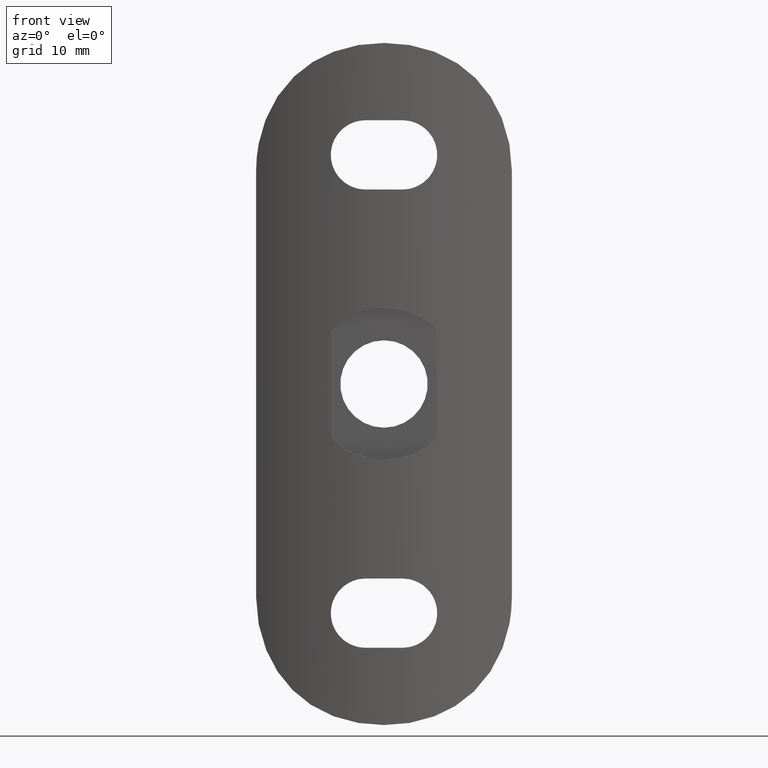
[diagram: clean part render]
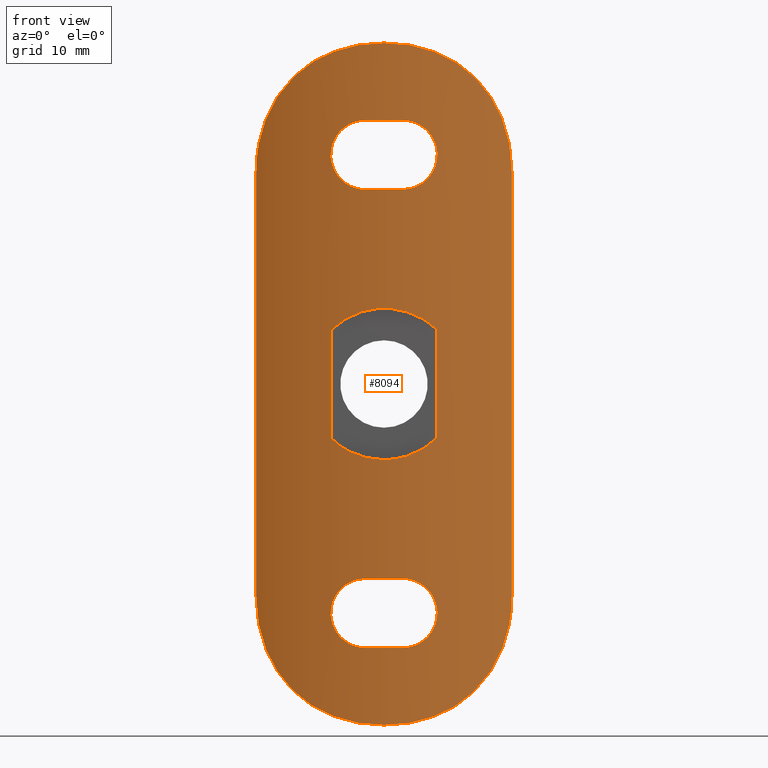
[diagram: same view with one face highlighted and labeled with its STEP entity id]
A machine part, front view. The second image highlights one B-rep face of the part: STEP entity #8094.
In plain terms, the highlighted cylindrical surface (partial cylindrical patch) has radius 24.9 mm, axis along (-0, -0, -1).
Its self-contained STEP definition (entity closure, byte-faithful):
#5 = CARTESIAN_POINT ( 'NONE',  ( -4.280658070604854300, 0.3676373866978217000, -5.683006983233148000 ) ) ;
#125 = CARTESIAN_POINT ( 'NONE',  ( -3.376757436341112100, 0.2293789948843361600, -18.67838509765151000 ) ) ;
#146 = CARTESIAN_POINT ( 'NONE',  ( 4.964876634922571700, 0.5000000000000004400, -5.075431016179797100 ) ) ;
#169 = CARTESIAN_POINT ( 'NONE',  ( 4.964876634922571700, 0.5000000000000004400, 5.075431016179797100 ) ) ;
#196 = CARTESIAN_POINT ( 'NONE',  ( 4.833440540320079700, 0.4734815985522365900, 22.54901821913098900 ) ) ;
#291 = CARTESIAN_POINT ( 'NONE',  ( -4.669968961185991100, 0.4417023648261141900, -22.94282409927689400 ) ) ;
#384 = CARTESIAN_POINT ( 'NONE',  ( 8.908510052025802000, 1.646330388748681500, -28.37937364185426500 ) ) ;
#437 = CARTESIAN_POINT ( 'NONE',  ( 1.354727536736092600E-015, 0.0000000000000000000, -32.00000000000000000 ) ) ;
#460 = VERTEX_POINT ( 'NONE', #4483 ) ;
#488 = CARTESIAN_POINT ( 'NONE',  ( 9.651496139240766300, 1.945102445586713600, -27.47737785628718400 ) ) ;
#508 = CARTESIAN_POINT ( 'NONE',  ( 2.594514404743046800, 0.1346554937287495500, 24.64553902907457700 ) ) ;
#641 = DIRECTION ( 'NONE',  ( -0.0000000000000000000, 0.0000000000000000000, 1.000000000000000000 ) ) ;
#699 = CARTESIAN_POINT ( 'NONE',  ( 12.00000000000000000, 3.082346597307949100, 20.00000000000000000 ) ) ;
#737 = ORIENTED_EDGE ( 'NONE', *, *, #2670, .T. ) ;
#753 = B_SPLINE_CURVE_WITH_KNOTS ( 'NONE', 3,
 ( #4286, #12850, #5817, #5661, #14049, #5714, #3637, #14652, #8704, #7621, #1844, #6722, #11577, #5456, #1209, #1373, #15520, #7241, #2415, #10958, #8605, #12068, #10906, #6147 ),
 .UNSPECIFIED., .F., .F.,
 ( 4, 2, 2, 2, 2, 2, 2, 2, 2, 2, 2, 4 ),
 ( 0.0000000000000000000, 0.002405426272235872300, 0.003608139408353802400, 0.004810852544471733300, 0.007216278816707594400, 0.008418991952825522300, 0.009621705088943449300, 0.01202713136117932100, 0.01443255763341518900, 0.01563527076953312400, 0.01683798390565105800, 0.01924341017788693000 ),
 .UNSPECIFIED. ) ;
#812 = CARTESIAN_POINT ( 'NONE',  ( 3.379298493659807600, 0.2297376527785607300, -18.67998032685584100 ) ) ;
#830 = CARTESIAN_POINT ( 'NONE',  ( -3.198330643184879900, 0.2031510813098111900, -31.65048156429587700 ) ) ;
#996 = CARTESIAN_POINT ( 'NONE',  ( -4.196808664011705000, 0.3557591106733118400, 19.35050935932302000 ) ) ;
#1002 = CARTESIAN_POINT ( 'NONE',  ( -9.887935222964619800, 2.046306664894907100, -27.14406495904744400 ) ) ;
#1006 = CARTESIAN_POINT ( 'NONE',  ( -7.465386431756504800, 1.143302312327336300, 29.68815436188814200 ) ) ;
#1025 = EDGE_LOOP ( 'NONE', ( #14755, #6089, #1216, #14668, #3434 ) ) ;
#1051 = CARTESIAN_POINT ( 'NONE',  ( -1.965087105857092500, 0.07672614713536238300, 18.25000000000000700 ) ) ;
#1159 = VERTEX_POINT ( 'NONE', #7335 ) ;
#1168 = CARTESIAN_POINT ( 'NONE',  ( 2.471878148250433100, 0.1220882104319690000, 6.659715758080817100 ) ) ;
#1200 = CARTESIAN_POINT ( 'NONE',  ( -5.000178405531976000, 0.5072097547976762700, 21.28707146590866700 ) ) ;
#1209 = CARTESIAN_POINT ( 'NONE',  ( 7.494247687663859700, 1.144484963655814800, 29.69387504587054500 ) ) ;
#1216 = ORIENTED_EDGE ( 'NONE', *, *, #8735, .T. ) ;
#1221 = CARTESIAN_POINT ( 'NONE',  ( 3.100854879138973600, 0.1929892019412275700, 6.391162737197316100 ) ) ;
#1246 = EDGE_CURVE ( 'NONE', #10184, #7170, #11977, .T. ) ;
#1288 = DIRECTION ( 'NONE',  ( 0.0000000000000000000, 0.0000000000000000000, -1.000000000000000000 ) ) ;
#1357 = CARTESIAN_POINT ( 'NONE',  ( 3.896366404324649300, 0.3062742463137166900, 19.05043842752545700 ) ) ;
#1373 = CARTESIAN_POINT ( 'NONE',  ( 6.164181800682563100, 0.7651474880378923400, 30.55211743802890100 ) ) ;
#1416 = CARTESIAN_POINT ( 'NONE',  ( -6.164181800682564800, 0.7651474880378932300, -30.55211743802890100 ) ) ;
#1498 = CARTESIAN_POINT ( 'NONE',  ( -4.333772591232490300, 0.3797466675969473100, -23.48287101470506100 ) ) ;
#1510 = CARTESIAN_POINT ( 'NONE',  ( 0.4591875355903487500, -2.204826761702943400E-015, -7.099999999999998800 ) ) ;
#1522 = EDGE_CURVE ( 'NONE', #5385, #3752, #5687, .T. ) ;
#1570 = CARTESIAN_POINT ( 'NONE',  ( 4.330242670651371000, 0.3791190960058236100, 19.51243666303044200 ) ) ;
#1594 = LINE ( 'NONE', #7544, #5188 ) ;
#1598 = CARTESIAN_POINT ( 'NONE',  ( -2.794747767780328300, 0.1541723985420278800, 31.73757162576538300 ) ) ;
#1599 = CARTESIAN_POINT ( 'NONE',  ( 12.00000000000000000, 3.082346597307949100, -20.00000000000000400 ) ) ;
#1748 = CARTESIAN_POINT ( 'NONE',  ( 9.880202087646580400, 2.042944110087796500, -27.15553979867361900 ) ) ;
#1775 = CARTESIAN_POINT ( 'NONE',  ( 4.332059542138636300, 0.3794452567388370600, 23.48501449485315400 ) ) ;
#1814 = CARTESIAN_POINT ( 'NONE',  ( 1.750000000000000700, 0.06157211094067610600, -24.74999999999999300 ) ) ;
#1844 = CARTESIAN_POINT ( 'NONE',  ( 9.659094786861162500, 1.948286492643255500, 27.46718664785969800 ) ) ;
#1869 = CARTESIAN_POINT ( 'NONE',  ( 4.832181657531248400, 0.4732340548237890500, -22.55241183402255000 ) ) ;
#1882 = VECTOR ( 'NONE', #2937, 1000.000000000000000 ) ;
#2139 = CARTESIAN_POINT ( 'NONE',  ( -8.362564540343113300, 1.444462998155984200, 28.93211677885593900 ) ) ;
#2149 = CIRCLE ( 'NONE', #12706, 24.89999999999999900 ) ;
#2208 = CARTESIAN_POINT ( 'NONE',  ( -9.659094786861166100, 1.948286492643255000, -27.46718664785970200 ) ) ;
#2215 = CARTESIAN_POINT ( 'NONE',  ( -1.912593264708343100E-023, 6.155950491353872400E-016, -7.099999999999998800 ) ) ;
#2253 = CARTESIAN_POINT ( 'NONE',  ( -2.173427572264014200, 0.09414151805681814100, 24.72938703061542800 ) ) ;
#2273 = CARTESIAN_POINT ( 'NONE',  ( -0.9285590918302121200, 0.01324505405162718300, 7.053925608798210500 ) ) ;
#2304 = CARTESIAN_POINT ( 'NONE',  ( -4.569974044707461000, 0.4226687404766058000, 19.87045876046723000 ) ) ;
#2356 = CARTESIAN_POINT ( 'NONE',  ( -2.177443562086834600, 0.09449415069726155300, 18.27114221892200500 ) ) ;
#2405 = CARTESIAN_POINT ( 'NONE',  ( -4.831856888946314000, 0.4731675139192338400, 22.55362868575011200 ) ) ;
#2415 = CARTESIAN_POINT ( 'NONE',  ( 3.974160166930932500, 0.3160679226588394300, 31.44271765376582900 ) ) ;
#2469 = CARTESIAN_POINT ( 'NONE',  ( -4.964876634922571700, 0.5000000000000004400, -5.075431016179798000 ) ) ;
#2485 = VERTEX_POINT ( 'NONE', #5839 ) ;
#2495 = CARTESIAN_POINT ( 'NONE',  ( -2.596838392578858300, 0.1348872146986936100, -24.64501117741286200 ) ) ;
#2564 = CARTESIAN_POINT ( 'NONE',  ( 4.195764808227311300, 0.3555795489418211400, 19.34930821785307500 ) ) ;
#2577 = CARTESIAN_POINT ( 'NONE',  ( -2.895531408592609600, 0.1680181235751893900, -6.486742510624893000 ) ) ;
#2644 = CARTESIAN_POINT ( 'NONE',  ( -4.567540273459067100, 0.4222143378470050700, -19.86630350374644400 ) ) ;
#2657 = CARTESIAN_POINT ( 'NONE',  ( 3.515929554202507700, 0.2486291357947134100, -6.172583524609188500 ) ) ;
#2670 = EDGE_CURVE ( 'NONE', #14160, #7533, #1594, .T. ) ;
#2704 = CARTESIAN_POINT ( 'NONE',  ( -3.897762865485695700, 0.3064966212607161400, -23.94832541266094200 ) ) ;
#2749 = CARTESIAN_POINT ( 'NONE',  ( 3.959980470126882100, 0.3137906045222421100, -31.44697538539421800 ) ) ;
#2772 = CARTESIAN_POINT ( 'NONE',  ( 4.999896307886642100, 0.5071519309142021900, 21.28559328919293500 ) ) ;
#2777 = CARTESIAN_POINT ( 'NONE',  ( 12.00000000000000000, 3.082346597307949100, 32.00000000000000000 ) ) ;
#2820 = CARTESIAN_POINT ( 'NONE',  ( 4.567742853892713000, 0.4222535756533749000, 23.13329092119648300 ) ) ;
#2847 = CARTESIAN_POINT ( 'NONE',  ( 7.465386431756502200, 1.143302312327335800, -29.68815436188812400 ) ) ;
#2907 = CARTESIAN_POINT ( 'NONE',  ( 6.156121038829931000, 0.7632757867342778700, -30.55584034722585700 ) ) ;
#2921 = CARTESIAN_POINT ( 'NONE',  ( 0.0000000000000000000, 24.89999999999999900, -24.74999999999999300 ) ) ;
#2937 = DIRECTION ( 'NONE',  ( -0.0000000000000000000, -0.0000000000000000000, -1.000000000000000000 ) ) ;
#2981 = CARTESIAN_POINT ( 'NONE',  ( 2.177902720471077000, 0.09454630024108080800, 24.72870246772033600 ) ) ;
#2999 = ORIENTED_EDGE ( 'NONE', *, *, #11983, .F. ) ;
#3004 = FACE_BOUND ( 'NONE', #15356, .T. ) ;
#3017 = CARTESIAN_POINT ( 'NONE',  ( 3.377047475293694300, 0.2294254022964722900, -24.32136223190054000 ) ) ;
#3080 = CARTESIAN_POINT ( 'NONE',  ( 4.332059542138636300, 0.3794452567388370600, -19.51498550514684300 ) ) ;
#3338 = EDGE_CURVE ( 'NONE', #3429, #3574, #6497, .T. ) ;
#3402 = CARTESIAN_POINT ( 'NONE',  ( -11.64449887647196900, 2.889965252531363500, 23.19149219421942800 ) ) ;
#3407 = CARTESIAN_POINT ( 'NONE',  ( -1.750000000000001100, 0.06157211094067610600, 24.74999999999999600 ) ) ;
#3423 = LINE ( 'NONE', #8789, #14149 ) ;
#3429 = VERTEX_POINT ( 'NONE', #5451 ) ;
#3434 = ORIENTED_EDGE ( 'NONE', *, *, #14513, .T. ) ;
#3450 = ORIENTED_EDGE ( 'NONE', *, *, #14727, .F. ) ;
#3459 = EDGE_CURVE ( 'NONE', #7533, #460, #13655, .T. ) ;
#3462 = CARTESIAN_POINT ( 'NONE',  ( -10.86337671054186600, 2.492480404372157600, 25.45273175522527600 ) ) ;
#3465 = CARTESIAN_POINT ( 'NONE',  ( -2.592930581873433400, 0.1344773235924728300, 24.64606095564008800 ) ) ;
#3537 = CARTESIAN_POINT ( 'NONE',  ( -2.264874394996064100, 0.09954205950475265900, 6.744685369997285700 ) ) ;
#3574 = VERTEX_POINT ( 'NONE', #4983 ) ;
#3589 = CARTESIAN_POINT ( 'NONE',  ( 1.816407414500746900, 0.06535917475730801400, 6.867561215927570300 ) ) ;
#3634 = CARTESIAN_POINT ( 'NONE',  ( -1.818617320225537300, 0.06552235762753380600, -6.866971293440952800 ) ) ;
#3637 = CARTESIAN_POINT ( 'NONE',  ( 11.28972141810764800, 2.705919538751912600, 24.33666306912914500 ) ) ;
#3638 = B_SPLINE_CURVE_WITH_KNOTS ( 'NONE', 3,
 ( #6269, #12350, #6330, #9820, #13419, #9725, #125, #14516, #14730, #14623, #14673, #2644, #7370, #7491, #8676, #9879, #9934, #3863, #11080, #13320, #12288, #291, #8722, #1498, #12149, #2704, #13526, #6380, #13369, #8524, #2495, #10931, #8574, #4924 ),
 .UNSPECIFIED., .F., .F.,
 ( 4, 2, 2, 2, 2, 2, 2, 2, 2, 2, 2, 2, 2, 2, 2, 2, 4 ),
 ( 0.01016492423979671100, 0.01080261328398359600, 0.01144030232817048200, 0.01207799137235736700, 0.01271568041654425100, 0.01335336946073113600, 0.01399105850491802100, 0.01462874754910490500, 0.01526643659329179200, 0.01590412563747867600, 0.01654181468166555900, 0.01717950372585244600, 0.01781719277003933300, 0.01845488181422621700, 0.01909257085841310100, 0.01973025990259998800, 0.02036794894678687100 ),
 .UNSPECIFIED. ) ;
#3644 = VERTEX_POINT ( 'NONE', #1814 ) ;
#3752 = VERTEX_POINT ( 'NONE', #8545 ) ;
#3753 = B_SPLINE_CURVE_WITH_KNOTS ( 'NONE', 3,
 ( #6436, #12455, #7651, #5518, #6792, #11547, #3017, #15227, #13900, #4449, #13950, #14057, #14005, #1869, #9244, #11493, #4343, #4236, #6749, #10302, #12654, #6837, #5466, #3080, #13848, #15082, #15133, #812, #6894, #12857, #6696, #9144, #8006, #8103 ),
 .UNSPECIFIED., .F., .F.,
 ( 4, 2, 2, 2, 2, 2, 2, 2, 2, 2, 2, 2, 2, 2, 2, 2, 4 ),
 ( 6.527761501258138900E-019, 0.0006377519170020730000, 0.001275503834004145400, 0.001913255751006217700, 0.002551007668008290300, 0.003188759585010363700, 0.003826511502012437200, 0.004464263419014510200, 0.005102015336016584000, 0.005739767253018657900, 0.006377519170020730900, 0.007015271087022804800, 0.007653023004024878600, 0.008290774921026949900, 0.008928526838029023800, 0.009566278755031097600, 0.01020403067203317200 ),
 .UNSPECIFIED. ) ;
#3843 = CARTESIAN_POINT ( 'NONE',  ( -3.506564222652095400, 0.2472996807291502100, -6.177880390645220200 ) ) ;
#3863 = CARTESIAN_POINT ( 'NONE',  ( -5.000178405531976000, 0.5072097547976762700, -21.71292853409132900 ) ) ;
#4006 = VERTEX_POINT ( 'NONE', #8634 ) ;
#4008 = CARTESIAN_POINT ( 'NONE',  ( -3.185422266228745700, 0.2014935117955072600, 31.65346151089247300 ) ) ;
#4030 = CARTESIAN_POINT ( 'NONE',  ( 4.197292259330842200, 0.3558296952568652000, 23.64919601314342400 ) ) ;
#4060 = CARTESIAN_POINT ( 'NONE',  ( -7.144447545478620000, 1.044514472182765500, 29.92030368926517500 ) ) ;
#4110 = CARTESIAN_POINT ( 'NONE',  ( 9.166149050193594100, 1.747021551233983500, -28.08848537800125600 ) ) ;
#4188 = CARTESIAN_POINT ( 'NONE',  ( 3.379298493659807600, 0.2297376527785607300, 24.32001967314414900 ) ) ;
#4236 = CARTESIAN_POINT ( 'NONE',  ( 5.000102926341558200, 0.5071942832089982900, -21.28874844890423300 ) ) ;
#4248 = CARTESIAN_POINT ( 'NONE',  ( 3.189447144969141500, 0.2043215681768341700, 24.42158148833293700 ) ) ;
#4273 = AXIS2_PLACEMENT_3D ( 'NONE', #13626, #641, #7741 ) ;
#4286 = CARTESIAN_POINT ( 'NONE',  ( 12.00000000000000000, 3.082346597307949100, 20.00000000000000000 ) ) ;
#4343 = CARTESIAN_POINT ( 'NONE',  ( 4.999896307886642100, 0.5071519309142021900, -21.71440671080705800 ) ) ;
#4361 = EDGE_CURVE ( 'NONE', #11782, #5385, #11739, .T. ) ;
#4449 = CARTESIAN_POINT ( 'NONE',  ( 4.195764808227311300, 0.3555795489418211400, -23.65069178214692200 ) ) ;
#4483 = CARTESIAN_POINT ( 'NONE',  ( 1.354727536736092600E-015, 0.0000000000000000000, -32.00000000000000000 ) ) ;
#4543 = CARTESIAN_POINT ( 'NONE',  ( -9.651496139240766300, 1.945102445586713900, 27.47737785628719100 ) ) ;
#4683 = CARTESIAN_POINT ( 'NONE',  ( -1.750000000000000000, 0.06157211094067610600, 18.25000000000000000 ) ) ;
#4700 = CARTESIAN_POINT ( 'NONE',  ( -0.4623322430174350300, 6.315633565654596400E-005, 7.099778508038800100 ) ) ;
#4728 = CARTESIAN_POINT ( 'NONE',  ( -4.193951421218593500, 0.3552689643878874100, 23.65274985050639200 ) ) ;
#4796 = EDGE_CURVE ( 'NONE', #2485, #3429, #3423, .T. ) ;
#4807 = CARTESIAN_POINT ( 'NONE',  ( -4.636331865774007400, 0.4331481865626338700, 5.396819336240054300 ) ) ;
#4824 = CARTESIAN_POINT ( 'NONE',  ( 0.0000000000000000000, 24.89999999999999900, 24.74999999999999600 ) ) ;
#4894 = EDGE_CURVE ( 'NONE', #7802, #3644, #11344, .T. ) ;
#4924 = CARTESIAN_POINT ( 'NONE',  ( -1.750000000000000700, 0.06157211094067610600, -24.74999999999999300 ) ) ;
#4983 = CARTESIAN_POINT ( 'NONE',  ( 4.964876634922571700, 0.5000000000000004400, 5.075431016179797100 ) ) ;
#4986 = CARTESIAN_POINT ( 'NONE',  ( -8.908510052025803800, 1.646330388748682600, 28.37937364185426100 ) ) ;
#4996 = CARTESIAN_POINT ( 'NONE',  ( 1.825648068936847100, 0.06292902135083973400, -6.876581450474884800 ) ) ;
#5011 = CARTESIAN_POINT ( 'NONE',  ( -1.592997682174077700, 0.04997569684468480100, -6.922826244222283000 ) ) ;
#5046 = CARTESIAN_POINT ( 'NONE',  ( 1.965143980138813800, 0.07673015423248856500, 18.24999999999999600 ) ) ;
#5101 = CARTESIAN_POINT ( 'NONE',  ( 4.894892916164645900, 0.4858264890792329300, 20.65247071163287600 ) ) ;
#5128 = CARTESIAN_POINT ( 'NONE',  ( 4.280216917462838400, 0.3675560682073232800, 5.683362678621718600 ) ) ;
#5170 = CARTESIAN_POINT ( 'NONE',  ( -1.912593264708343100E-023, 6.155950491353872400E-016, -7.099999999999998800 ) ) ;
#5188 = VECTOR ( 'NONE', #14782, 1000.000000000000000 ) ;
#5207 = B_SPLINE_CURVE_WITH_KNOTS ( 'NONE', 3,
 ( #437, #7738, #14773, #7641, #10127, #2749, #14877, #6424, #2907, #6537, #2847, #11326, #12545, #384, #4110, #488, #1748, #5354, #9979, #8880, #13726, #5247, #8826, #1599 ),
 .UNSPECIFIED., .F., .F.,
 ( 4, 2, 2, 2, 2, 2, 2, 2, 2, 2, 2, 4 ),
 ( 1.186568927549904400E-017, 0.002406420888281001100, 0.003609631332421493800, 0.004812841776561986600, 0.007219262664842970300, 0.008422473108983460900, 0.009625683553123954100, 0.01082889399726444400, 0.01203210444140493400, 0.01443852532968592300, 0.01684494621796691100, 0.01925136710624790100 ),
 .UNSPECIFIED. ) ;
#5247 = CARTESIAN_POINT ( 'NONE',  ( 11.92848259060795400, 3.042569072407050400, -21.61410712426871300 ) ) ;
#5290 = CARTESIAN_POINT ( 'NONE',  ( -11.62834804759316000, 2.881689642610588900, -23.18144421163977900 ) ) ;
#5295 = CARTESIAN_POINT ( 'NONE',  ( -0.8125589719993513400, 3.887881227897237100E-016, 32.00000000000000000 ) ) ;
#5354 = CARTESIAN_POINT ( 'NONE',  ( 10.51395294504080100, 2.323897979086565300, -26.15610659191669600 ) ) ;
#5385 = VERTEX_POINT ( 'NONE', #9898 ) ;
#5434 = CARTESIAN_POINT ( 'NONE',  ( -4.352835420540757600, 0.3805286105153351500, -31.32115928304209600 ) ) ;
#5451 = CARTESIAN_POINT ( 'NONE',  ( -4.964876634922571700, 0.5000000000000004400, 5.075431016179797100 ) ) ;
#5456 = CARTESIAN_POINT ( 'NONE',  ( 8.096501375618355900, 1.345930086255307000, 29.20234642595245200 ) ) ;
#5466 = CARTESIAN_POINT ( 'NONE',  ( 4.567742853892713000, 0.4222535756533749000, -19.86670907880352000 ) ) ;
#5487 = EDGE_LOOP ( 'NONE', ( #14888, #10495, #2999, #8823 ) ) ;
#5518 = CARTESIAN_POINT ( 'NONE',  ( 2.591758761209229000, 0.1343724820084808400, -24.64623100149121600 ) ) ;
#5563 = CARTESIAN_POINT ( 'NONE',  ( -1.750000000000001100, 0.06157211094067610600, 24.74999999999999600 ) ) ;
#5661 = CARTESIAN_POINT ( 'NONE',  ( 11.71658496996893100, 2.928699025537531100, 22.79178284133484000 ) ) ;
#5687 = B_SPLINE_CURVE_WITH_KNOTS ( 'NONE', 3,
 ( #14585, #5046, #13541, #13434, #11202, #7662, #8796, #12209, #1357, #2564, #1570, #6288, #9996, #11092, #5101, #11004, #2772, #13386, #6235, #7448, #196, #7863, #2820, #1775, #4030, #7708, #10201, #4188, #4248, #10149, #508, #2981, #11296, #10054 ),
 .UNSPECIFIED., .F., .F.,
 ( 4, 2, 2, 2, 2, 2, 2, 2, 2, 2, 2, 2, 2, 2, 2, 2, 4 ),
 ( 6.527761501258138900E-019, 0.0006377519170020730000, 0.001275503834004145400, 0.001913255751006217700, 0.002551007668008290300, 0.003188759585010363700, 0.003826511502012437200, 0.004464263419014510200, 0.005102015336016584000, 0.005739767253018657900, 0.006377519170020730900, 0.007015271087022804800, 0.007653023004024878600, 0.008290774921026949900, 0.008928526838029023800, 0.009566278755031097600, 0.01020403067203317200 ),
 .UNSPECIFIED. ) ;
#5714 = CARTESIAN_POINT ( 'NONE',  ( 11.41507547166433100, 2.770370059883676900, 23.95386468381838400 ) ) ;
#5727 = ORIENTED_EDGE ( 'NONE', *, *, #7743, .T. ) ;
#5817 = CARTESIAN_POINT ( 'NONE',  ( 11.92848342012842100, 3.042575568667967600, 21.61270732962849600 ) ) ;
#5839 = CARTESIAN_POINT ( 'NONE',  ( -4.964876634922571700, 0.5000000000000004400, -5.075431016179798000 ) ) ;
#5852 = CARTESIAN_POINT ( 'NONE',  ( -4.333772591232490300, 0.3797466675969473100, 19.51712898529493500 ) ) ;
#5874 = CARTESIAN_POINT ( 'NONE',  ( -12.00000000000000000, 3.082346597307949100, -20.00000000000000400 ) ) ;
#5904 = CARTESIAN_POINT ( 'NONE',  ( -12.00000000000000000, 3.082346597307949100, 20.00000000000000000 ) ) ;
#5908 = CARTESIAN_POINT ( 'NONE',  ( -2.596838392578858300, 0.1348872146986936100, 18.35498882258713500 ) ) ;
#5937 = CARTESIAN_POINT ( 'NONE',  ( 1.590617300758583100, 0.04982189489905082500, 6.923377972446072400 ) ) ;
#5991 = ORIENTED_EDGE ( 'NONE', *, *, #1522, .F. ) ;
#6010 = CARTESIAN_POINT ( 'NONE',  ( -0.8129078222397836400, 3.777766944754178500E-016, -32.00000000000000700 ) ) ;
#6022 = CARTESIAN_POINT ( 'NONE',  ( -4.999819341627043600, 0.5071361545086710000, 21.71834027389242300 ) ) ;
#6028 = CARTESIAN_POINT ( 'NONE',  ( -7.494247687663858800, 1.144484963655815600, -29.69387504587054500 ) ) ;
#6046 = CARTESIAN_POINT ( 'NONE',  ( -2.901699150288131500, 0.1687296209421771900, 6.484038188702943900 ) ) ;
#6064 = FACE_BOUND ( 'NONE', #5487, .T. ) ;
#6089 = ORIENTED_EDGE ( 'NONE', *, *, #3338, .T. ) ;
#6090 = CARTESIAN_POINT ( 'NONE',  ( -3.102125699781573600, 0.1931499008449999400, -6.390541049978247100 ) ) ;
#6138 = CARTESIAN_POINT ( 'NONE',  ( -8.913816326006879000, 1.648370712723072900, -28.37356755031020600 ) ) ;
#6147 = CARTESIAN_POINT ( 'NONE',  ( -9.648348977379416000E-015, 0.0000000000000000000, 32.00000000000000000 ) ) ;
#6158 = CARTESIAN_POINT ( 'NONE',  ( -3.712954843146298000, 0.2776349266171045900, 6.056033097486660700 ) ) ;
#6235 = CARTESIAN_POINT ( 'NONE',  ( 4.978818007562640700, 0.5028036596264162700, 21.92748556011540000 ) ) ;
#6269 = CARTESIAN_POINT ( 'NONE',  ( -1.750000000000000700, 0.06157211094067610600, -18.25000000000000400 ) ) ;
#6288 = CARTESIAN_POINT ( 'NONE',  ( 4.568030018327656100, 0.4223019128380129400, 19.86697609517805300 ) ) ;
#6330 = CARTESIAN_POINT ( 'NONE',  ( -2.173427572264014200, 0.09414151805681814100, -18.27061296938456900 ) ) ;
#6380 = CARTESIAN_POINT ( 'NONE',  ( -3.379507398979872500, 0.2297529128999119800, -24.32007242477439500 ) ) ;
#6424 = CARTESIAN_POINT ( 'NONE',  ( 5.455945028680434700, 0.5933539838150057000, -30.90527435075046400 ) ) ;
#6436 = CARTESIAN_POINT ( 'NONE',  ( 1.750000000000000700, 0.06157211094067610600, -24.74999999999999300 ) ) ;
#6477 = B_SPLINE_CURVE_WITH_KNOTS ( 'NONE', 3,
 ( #12055, #13239, #14635, #13288, #2657, #12306, #12361, #14688, #4996, #8642, #1510, #7446 ),
 .UNSPECIFIED., .F., .F.,
 ( 4, 2, 2, 2, 2, 4 ),
 ( 1.084202172485504400E-019, 0.001374906896801239600, 0.002062360345201859300, 0.002749813793602478700, 0.004124720690403720400, 0.005499627587204962600 ),
 .UNSPECIFIED. ) ;
#6497 = B_SPLINE_CURVE_WITH_KNOTS ( 'NONE', 3,
 ( #9553, #4807, #14361, #6158, #8316, #9500, #6046, #3537, #8465, #2273, #4700, #14412, #13108, #5937, #3589, #7205, #1168, #9602, #1221, #7415, #14661, #5128, #12278, #169 ),
 .UNSPECIFIED., .F., .F.,
 ( 4, 2, 2, 2, 2, 2, 2, 2, 2, 2, 2, 4 ),
 ( 1.084202172485504400E-019, 0.001374055046407001800, 0.002061082569610501200, 0.002748110092814001100, 0.004122165139220996400, 0.005496220185627991700, 0.006870275232034987100, 0.007557302755238485600, 0.008244330278441982400, 0.008931357801645478300, 0.009618385324848976000, 0.01099244037125597000 ),
 .UNSPECIFIED. ) ;
#6537 = CARTESIAN_POINT ( 'NONE',  ( 7.144447545478620900, 1.044514472182761700, -29.92030368926517200 ) ) ;
#6680 = CARTESIAN_POINT ( 'NONE',  ( -1.613102312184491600, 0.03970442660034871600, 31.93708710865749000 ) ) ;
#6696 = CARTESIAN_POINT ( 'NONE',  ( 2.594514404743046800, 0.1346554937287495500, -18.35446097092542000 ) ) ;
#6717 = CARTESIAN_POINT ( 'NONE',  ( -3.974160166930936100, 0.3160679226588403200, -31.44271765376582200 ) ) ;
#6722 = CARTESIAN_POINT ( 'NONE',  ( 9.171811217397618100, 1.749251761168286100, 28.08196296880781200 ) ) ;
#6749 = CARTESIAN_POINT ( 'NONE',  ( 4.978818007562640700, 0.5028036596264162700, -21.07251443988460000 ) ) ;
#6792 = CARTESIAN_POINT ( 'NONE',  ( 2.797891268713692500, 0.1569006532702281500, -24.58377171361764700 ) ) ;
#6837 = CARTESIAN_POINT ( 'NONE',  ( 4.669786817375190900, 0.4416672736397513300, -20.05677800361822700 ) ) ;
#6877 = CARTESIAN_POINT ( 'NONE',  ( -11.28972141810764600, 2.705919538751912600, -24.33666306912914500 ) ) ;
#6894 = CARTESIAN_POINT ( 'NONE',  ( 3.189447144969141500, 0.2043215681768341700, -18.57841851166708100 ) ) ;
#7064 = CARTESIAN_POINT ( 'NONE',  ( -1.615684953159060900, 0.03974048908352446200, -31.93706210126419300 ) ) ;
#7080 = CARTESIAN_POINT ( 'NONE',  ( -3.897762865485695700, 0.3064966212607161400, 19.05167458733905400 ) ) ;
#7127 = CARTESIAN_POINT ( 'NONE',  ( -2.797410199282315700, 0.1568560611489179200, 24.58384105369424300 ) ) ;
#7170 = VERTEX_POINT ( 'NONE', #8233 ) ;
#7205 = CARTESIAN_POINT ( 'NONE',  ( 2.256384447253276400, 0.1014627439347175200, 6.735834185619431500 ) ) ;
#7231 = CARTESIAN_POINT ( 'NONE',  ( -4.331279476224484200, 0.3793060218351521100, 23.48607494824772200 ) ) ;
#7241 = CARTESIAN_POINT ( 'NONE',  ( 4.352835420540753100, 0.3805286105153353700, 31.32115928304211000 ) ) ;
#7335 = CARTESIAN_POINT ( 'NONE',  ( -9.648348977379416000E-015, 0.0000000000000000000, 32.00000000000000000 ) ) ;
#7370 = CARTESIAN_POINT ( 'NONE',  ( -4.667758336609303200, 0.4412792973687408300, -20.05270542717514500 ) ) ;
#7415 = CARTESIAN_POINT ( 'NONE',  ( 3.505576954194477700, 0.2471580994179633800, 6.178445786202224200 ) ) ;
#7446 = CARTESIAN_POINT ( 'NONE',  ( -1.912593264708343100E-023, 6.155950491353872400E-016, -7.099999999999998800 ) ) ;
#7448 = CARTESIAN_POINT ( 'NONE',  ( 4.895234471306550500, 0.4858955213569160500, 22.34587809439242200 ) ) ;
#7491 = CARTESIAN_POINT ( 'NONE',  ( -4.831856888946314000, 0.4731675139192338400, -20.44637131424988800 ) ) ;
#7509 = EDGE_CURVE ( 'NONE', #3644, #10956, #3753, .T. ) ;
#7533 = VERTEX_POINT ( 'NONE', #5874 ) ;
#7544 = CARTESIAN_POINT ( 'NONE',  ( -12.00000000000000000, 3.082346597307949100, 32.00000000000000000 ) ) ;
#7621 = CARTESIAN_POINT ( 'NONE',  ( 9.887935222964619800, 2.046306664894908000, 27.14406495904743700 ) ) ;
#7635 = CARTESIAN_POINT ( 'NONE',  ( -11.71658496996893100, 2.928699025537531100, -22.79178284133483200 ) ) ;
#7641 = CARTESIAN_POINT ( 'NONE',  ( 2.794747767780320300, 0.1541723985420303000, -31.73757162576540500 ) ) ;
#7651 = CARTESIAN_POINT ( 'NONE',  ( 2.176447467430499200, 0.09442408937621665800, -24.72884962244126700 ) ) ;
#7662 = CARTESIAN_POINT ( 'NONE',  ( 3.190801028106020600, 0.2044953557794018700, 18.57907266605905500 ) ) ;
#7708 = CARTESIAN_POINT ( 'NONE',  ( 3.894397572931082200, 0.3059514149780170300, 23.95149790020295600 ) ) ;
#7738 = CARTESIAN_POINT ( 'NONE',  ( 0.8125589719993421300, -2.039231820514727300E-015, -31.99999999999999300 ) ) ;
#7741 = DIRECTION ( 'NONE',  ( 1.000000000000000000, 0.0000000000000000000, 0.0000000000000000000 ) ) ;
#7743 = EDGE_CURVE ( 'NONE', #1159, #14160, #10994, .T. ) ;
#7802 = VERTEX_POINT ( 'NONE', #10782 ) ;
#7863 = CARTESIAN_POINT ( 'NONE',  ( 4.669786817375190900, 0.4416672736397513300, 22.94322199638177700 ) ) ;
#7874 = CARTESIAN_POINT ( 'NONE',  ( 4.964876634922571700, 0.5000000000000004400, 32.00000000000000000 ) ) ;
#8006 = CARTESIAN_POINT ( 'NONE',  ( 1.962356749581101400, 0.07653377894264680500, -18.25000000000000400 ) ) ;
#8011 = ORIENTED_EDGE ( 'NONE', *, *, #15151, .F. ) ;
#8094 = ADVANCED_FACE ( 'NONE', ( #12443, #14104, #3004, #6064 ), #12983, .T. ) ;
#8103 = CARTESIAN_POINT ( 'NONE',  ( 1.750000000000000700, 0.06157211094067610600, -18.25000000000000000 ) ) ;
#8233 = CARTESIAN_POINT ( 'NONE',  ( 12.00000000000000000, 3.082346597307949100, -20.00000000000000400 ) ) ;
#8243 = CARTESIAN_POINT ( 'NONE',  ( -3.379507398979872500, 0.2297529128999119800, 18.67992757522560200 ) ) ;
#8297 = CARTESIAN_POINT ( 'NONE',  ( -3.191839484975250900, 0.2046407889308306500, 18.57968989934172700 ) ) ;
#8316 = CARTESIAN_POINT ( 'NONE',  ( -3.516909975171009800, 0.2487702346759024000, 6.172019479054692500 ) ) ;
#8392 = CARTESIAN_POINT ( 'NONE',  ( -11.42861343239433600, 2.775428072017194700, 23.97385143687691700 ) ) ;
#8443 = CARTESIAN_POINT ( 'NONE',  ( -2.801728404242047200, 0.1573460637212715500, 18.41763409891834900 ) ) ;
#8465 = CARTESIAN_POINT ( 'NONE',  ( -1.827830933494228400, 0.06309544638728611900, 6.875981570658937300 ) ) ;
#8502 = CARTESIAN_POINT ( 'NONE',  ( -8.074259893479329300, 1.343281069480899200, 29.19397140321250100 ) ) ;
#8524 = CARTESIAN_POINT ( 'NONE',  ( -2.801728404242047200, 0.1573460637212715500, -24.58236590108164400 ) ) ;
#8545 = CARTESIAN_POINT ( 'NONE',  ( 1.750000000000001100, 0.06157211094067610600, 24.74999999999999600 ) ) ;
#8574 = CARTESIAN_POINT ( 'NONE',  ( -1.965087105857092500, 0.07672614713536238300, -24.75000000000000000 ) ) ;
#8605 = CARTESIAN_POINT ( 'NONE',  ( 2.803457390454639200, 0.1551245332614456000, 31.73589290901538000 ) ) ;
#8634 = CARTESIAN_POINT ( 'NONE',  ( -1.750000000000000700, 0.06157211094067610600, -18.25000000000000400 ) ) ;
#8642 = CARTESIAN_POINT ( 'NONE',  ( 0.9257241312039713500, 0.01313357405203879000, -7.054317695534754400 ) ) ;
#8676 = CARTESIAN_POINT ( 'NONE',  ( -4.894941741650815600, 0.4858369437823887900, -20.65326698999940500 ) ) ;
#8704 = CARTESIAN_POINT ( 'NONE',  ( 10.51663599609498300, 2.325221696771321100, 26.15040292986302400 ) ) ;
#8722 = CARTESIAN_POINT ( 'NONE',  ( -4.569974044707461000, 0.4226687404766058000, -23.12954123953277000 ) ) ;
#8735 = EDGE_CURVE ( 'NONE', #3574, #14779, #11479, .T. ) ;
#8789 = CARTESIAN_POINT ( 'NONE',  ( -4.964876634922571700, 0.5000000000000004400, 32.00000000000000000 ) ) ;
#8796 = CARTESIAN_POINT ( 'NONE',  ( 3.377047475293694300, 0.2294254022964722900, 18.67863776809946000 ) ) ;
#8823 = ORIENTED_EDGE ( 'NONE', *, *, #7509, .F. ) ;
#8826 = CARTESIAN_POINT ( 'NONE',  ( 12.00000000000000400, 3.082346597307950900, -20.81329885972722200 ) ) ;
#8853 = DIRECTION ( 'NONE',  ( -0.0000000000000000000, -0.0000000000000000000, -1.000000000000000000 ) ) ;
#8878 = CARTESIAN_POINT ( 'NONE',  ( -6.156121038829931900, 0.7632757867342823100, 30.55584034722584600 ) ) ;
#8880 = CARTESIAN_POINT ( 'NONE',  ( 11.42861343239433900, 2.775428072017195100, -23.97385143687692400 ) ) ;
#8933 = ORIENTED_EDGE ( 'NONE', *, *, #3459, .T. ) ;
#9144 = CARTESIAN_POINT ( 'NONE',  ( 2.177902720471077000, 0.09454630024108080800, -18.27129753227967200 ) ) ;
#9170 = CARTESIAN_POINT ( 'NONE',  ( -12.00000000000000000, 3.082346597307949100, 20.00000000000000000 ) ) ;
#9244 = CARTESIAN_POINT ( 'NONE',  ( 4.894892916164645900, 0.4858264890792329300, -22.34752928836712400 ) ) ;
#9426 = CARTESIAN_POINT ( 'NONE',  ( -3.731040082837480100, 0.2804676839262582000, 24.08521384106565600 ) ) ;
#9500 = CARTESIAN_POINT ( 'NONE',  ( -3.111721533360783300, 0.1943534022062694300, 6.385896125220544000 ) ) ;
#9553 = CARTESIAN_POINT ( 'NONE',  ( -4.964876634922571700, 0.5000000000000004400, 5.075431016179797100 ) ) ;
#9582 = CARTESIAN_POINT ( 'NONE',  ( -4.979098333305069300, 0.5028615281826559500, 21.07504068841803900 ) ) ;
#9602 = CARTESIAN_POINT ( 'NONE',  ( 2.894113515964134900, 0.1678508578788057700, 6.487380250528069300 ) ) ;
#9617 = CARTESIAN_POINT ( 'NONE',  ( -2.803457390454646700, 0.1551245332614457400, -31.73589290901538000 ) ) ;
#9725 = CARTESIAN_POINT ( 'NONE',  ( -3.187882409898699100, 0.2041282489884510600, -18.57773410769749800 ) ) ;
#9820 = CARTESIAN_POINT ( 'NONE',  ( -2.592930581873433400, 0.1344773235924728300, -18.35393904435990800 ) ) ;
#9856 = CARTESIAN_POINT ( 'NONE',  ( -2.473601289892213300, 0.1222614766279532800, -6.659071046019712400 ) ) ;
#9879 = CARTESIAN_POINT ( 'NONE',  ( -4.978395926258423600, 0.5027176433285935900, -21.06979645291983900 ) ) ;
#9898 = CARTESIAN_POINT ( 'NONE',  ( 1.750000000000000000, 0.06157211094067610600, 18.25000000000000000 ) ) ;
#9933 = AXIS2_PLACEMENT_3D ( 'NONE', #2921, #12405, #11343 ) ;
#9934 = CARTESIAN_POINT ( 'NONE',  ( -4.999819341627043600, 0.5071361545086710000, -21.28165972610758100 ) ) ;
#9945 = ORIENTED_EDGE ( 'NONE', *, *, #1246, .F. ) ;
#9979 = CARTESIAN_POINT ( 'NONE',  ( 10.86337671054186400, 2.492480404372157100, -25.45273175522528700 ) ) ;
#9996 = CARTESIAN_POINT ( 'NONE',  ( 4.669407268129083900, 0.4415963342628391200, 20.05622867419807100 ) ) ;
#10054 = CARTESIAN_POINT ( 'NONE',  ( 1.750000000000001100, 0.06157211094067610600, 24.74999999999999600 ) ) ;
#10074 = CARTESIAN_POINT ( 'NONE',  ( -11.92848342012842300, 3.042575568667968500, -21.61270732962850300 ) ) ;
#10127 = CARTESIAN_POINT ( 'NONE',  ( 3.185422266228738100, 0.2014935117955102800, -31.65346151089248000 ) ) ;
#10149 = CARTESIAN_POINT ( 'NONE',  ( 2.796808719200211800, 0.1567793671322289500, 24.58412677779885100 ) ) ;
#10184 = VERTEX_POINT ( 'NONE', #699 ) ;
#10201 = CARTESIAN_POINT ( 'NONE',  ( 3.730641432633566600, 0.2804180155084460300, 24.08537889944538400 ) ) ;
#10251 = EDGE_CURVE ( 'NONE', #10184, #1159, #753, .T. ) ;
#10302 = CARTESIAN_POINT ( 'NONE',  ( 4.895234471306550500, 0.4858955213569160500, -20.65412190560756800 ) ) ;
#10317 = VERTEX_POINT ( 'NONE', #5170 ) ;
#10435 = ORIENTED_EDGE ( 'NONE', *, *, #11557, .T. ) ;
#10464 = CARTESIAN_POINT ( 'NONE',  ( 0.0000000000000000000, 24.89999999999999900, -18.25000000000000400 ) ) ;
#10495 = ORIENTED_EDGE ( 'NONE', *, *, #12245, .F. ) ;
#10552 = DIRECTION ( 'NONE',  ( -1.000000000000000000, 0.0000000000000000000, 0.0000000000000000000 ) ) ;
#10575 = CARTESIAN_POINT ( 'NONE',  ( -10.86543210599210400, 2.493472959304764200, -25.44850832163290700 ) ) ;
#10622 = CARTESIAN_POINT ( 'NONE',  ( -11.99999999999999600, 3.082346597307952200, 20.81329885972720500 ) ) ;
#10626 = CARTESIAN_POINT ( 'NONE',  ( -4.667758336609303200, 0.4412792973687408300, 22.94729457282485200 ) ) ;
#10668 = CARTESIAN_POINT ( 'NONE',  ( 1.354727536736092600E-015, 0.0000000000000000000, -32.00000000000000000 ) ) ;
#10782 = CARTESIAN_POINT ( 'NONE',  ( -1.750000000000000700, 0.06157211094067610600, -24.74999999999999300 ) ) ;
#10843 = CARTESIAN_POINT ( 'NONE',  ( -4.833441541445318500, 0.4734821111435576500, 20.45102508312490000 ) ) ;
#10854 = CARTESIAN_POINT ( 'NONE',  ( -0.4586185383962331800, -2.209061926439218800E-015, -7.100000000000002300 ) ) ;
#10906 = CARTESIAN_POINT ( 'NONE',  ( 0.8129078222397750900, -1.747334855413705100E-015, 32.00000000000000000 ) ) ;
#10931 = CARTESIAN_POINT ( 'NONE',  ( -2.177443562086834600, 0.09449415069726155300, -24.72885778107799800 ) ) ;
#10956 = VERTEX_POINT ( 'NONE', #15108 ) ;
#10958 = CARTESIAN_POINT ( 'NONE',  ( 3.198330643184872800, 0.2031510813098100800, 31.65048156429586300 ) ) ;
#10994 = B_SPLINE_CURVE_WITH_KNOTS ( 'NONE', 3,
 ( #12643, #5295, #6680, #1598, #4008, #12445, #13622, #14824, #8878, #4060, #1006, #8502, #2139, #4986, #11241, #4543, #12391, #14180, #3462, #8392, #3402, #11839, #10622, #5904 ),
 .UNSPECIFIED., .F., .F.,
 ( 4, 2, 2, 2, 2, 2, 2, 2, 2, 2, 2, 4 ),
 ( 1.035266063289337000E-017, 0.002406420888280993700, 0.003609631332421487300, 0.004812841776561981400, 0.007219262664842964300, 0.008422473108983455700, 0.009625683553123943700, 0.01082889399726443500, 0.01203210444140492300, 0.01443852532968591300, 0.01684494621796690400, 0.01925136710624789100 ),
 .UNSPECIFIED. ) ;
#11004 = CARTESIAN_POINT ( 'NONE',  ( 4.979091630715085000, 0.5028589499710626200, 21.07382563518150300 ) ) ;
#11055 = AXIS2_PLACEMENT_3D ( 'NONE', #12719, #13908, #12512 ) ;
#11065 = CARTESIAN_POINT ( 'NONE',  ( -0.9142097955992403200, 0.01266148458381292600, -7.055981841108254200 ) ) ;
#11080 = CARTESIAN_POINT ( 'NONE',  ( -4.979098333305069300, 0.5028615281826559500, -21.92495931158196100 ) ) ;
#11092 = CARTESIAN_POINT ( 'NONE',  ( 4.832181657531248400, 0.4732340548237890500, 20.44758816597745700 ) ) ;
#11202 = CARTESIAN_POINT ( 'NONE',  ( 2.797891268713692500, 0.1569006532702281500, 18.41622828638234900 ) ) ;
#11241 = CARTESIAN_POINT ( 'NONE',  ( -9.166149050193594100, 1.747021551233983700, 28.08848537800125600 ) ) ;
#11296 = CARTESIAN_POINT ( 'NONE',  ( 1.962356749581101400, 0.07653377894264680500, 24.75000000000000000 ) ) ;
#11326 = CARTESIAN_POINT ( 'NONE',  ( 8.074259893479329300, 1.343281069480899900, -29.19397140321250500 ) ) ;
#11343 = DIRECTION ( 'NONE',  ( 1.000000000000000000, 0.0000000000000000000, 0.0000000000000000000 ) ) ;
#11344 = CIRCLE ( 'NONE', #9933, 24.89999999999999900 ) ;
#11427 = CIRCLE ( 'NONE', #12883, 24.89999999999999900 ) ;
#11479 = LINE ( 'NONE', #7874, #1882 ) ;
#11493 = CARTESIAN_POINT ( 'NONE',  ( 4.979091630715085000, 0.5028589499710626200, -21.92617436481849300 ) ) ;
#11547 = CARTESIAN_POINT ( 'NONE',  ( 3.190801028106020600, 0.2044953557794018700, -24.42092733394094900 ) ) ;
#11557 = EDGE_CURVE ( 'NONE', #460, #7170, #5207, .T. ) ;
#11577 = CARTESIAN_POINT ( 'NONE',  ( 8.913816326006871900, 1.648370712723077100, 28.37356755031019200 ) ) ;
#11739 = CIRCLE ( 'NONE', #4273, 24.89999999999999900 ) ;
#11782 = VERTEX_POINT ( 'NONE', #14555 ) ;
#11824 = DIRECTION ( 'NONE',  ( 0.0000000000000000000, 0.0000000000000000000, -1.000000000000000000 ) ) ;
#11839 = CARTESIAN_POINT ( 'NONE',  ( -11.92848259060795800, 3.042569072407052200, 21.61410712426871700 ) ) ;
#11844 = CARTESIAN_POINT ( 'NONE',  ( -4.978395926258423600, 0.5027176433285935900, 21.93020354708015400 ) ) ;
#11879 = DIRECTION ( 'NONE',  ( -1.000000000000000000, 0.0000000000000000000, 0.0000000000000000000 ) ) ;
#11899 = CARTESIAN_POINT ( 'NONE',  ( -3.894337671529458400, 0.3059522600652734800, 23.95133563972608600 ) ) ;
#11977 = LINE ( 'NONE', #2777, #12910 ) ;
#11983 = EDGE_CURVE ( 'NONE', #10956, #4006, #11427, .T. ) ;
#12007 = CARTESIAN_POINT ( 'NONE',  ( -4.894941741650815600, 0.4858369437823887900, 22.34673301000059500 ) ) ;
#12044 = B_SPLINE_CURVE_WITH_KNOTS ( 'NONE', 3,
 ( #2215, #10854, #11065, #5011, #3634, #14601, #9856, #2577, #6090, #3843, #14547, #5, #12176, #2469 ),
 .UNSPECIFIED., .F., .F.,
 ( 4, 2, 2, 2, 2, 2, 4 ),
 ( 0.005499627587204962600, 0.006872830783217715400, 0.007559432381224091000, 0.008246033979230465600, 0.008932635577236841200, 0.009619237175243216700, 0.01099244037125596800 ),
 .UNSPECIFIED. ) ;
#12055 = CARTESIAN_POINT ( 'NONE',  ( 4.964876634922571700, 0.5000000000000004400, -5.075431016179797100 ) ) ;
#12068 = CARTESIAN_POINT ( 'NONE',  ( 1.615684953159052700, 0.03974048908352453800, 31.93706210126420000 ) ) ;
#12149 = CARTESIAN_POINT ( 'NONE',  ( -4.196808664011705000, 0.3557591106733118400, -23.64949064067698000 ) ) ;
#12159 = DIRECTION ( 'NONE',  ( 0.0000000000000000000, 0.0000000000000000000, 1.000000000000000000 ) ) ;
#12176 = CARTESIAN_POINT ( 'NONE',  ( -4.636500095948956200, 0.4331824177948062600, -5.396654770499286400 ) ) ;
#12209 = CARTESIAN_POINT ( 'NONE',  ( 3.729496545829208600, 0.2802405343616304300, 18.91369728076842800 ) ) ;
#12245 = EDGE_CURVE ( 'NONE', #4006, #7802, #3638, .T. ) ;
#12278 = CARTESIAN_POINT ( 'NONE',  ( 4.636296391438946800, 0.4331409682963566800, 5.396854037863761300 ) ) ;
#12288 = CARTESIAN_POINT ( 'NONE',  ( -4.833441541445318500, 0.4734821111435576500, -22.54897491687510000 ) ) ;
#12306 = CARTESIAN_POINT ( 'NONE',  ( 3.110441035698538600, 0.1941909122946038900, -6.386525233789814800 ) ) ;
#12350 = CARTESIAN_POINT ( 'NONE',  ( -1.962362341864049700, 0.07653417294886710700, -18.25000000000000400 ) ) ;
#12361 = CARTESIAN_POINT ( 'NONE',  ( 2.900267126599512600, 0.1685603784628218200, -6.484683680393533000 ) ) ;
#12371 = ORIENTED_EDGE ( 'NONE', *, *, #10251, .T. ) ;
#12391 = CARTESIAN_POINT ( 'NONE',  ( -9.880202087646585700, 2.042944110087798300, 27.15553979867361500 ) ) ;
#12405 = DIRECTION ( 'NONE',  ( -0.0000000000000000000, 0.0000000000000000000, 1.000000000000000000 ) ) ;
#12443 = FACE_BOUND ( 'NONE', #1025, .T. ) ;
#12445 = CARTESIAN_POINT ( 'NONE',  ( -3.959980470126890600, 0.3137906045222392200, 31.44697538539421100 ) ) ;
#12455 = CARTESIAN_POINT ( 'NONE',  ( 1.965143980138813800, 0.07673015423248856500, -24.74999999999999300 ) ) ;
#12484 = VERTEX_POINT ( 'NONE', #5563 ) ;
#12512 = DIRECTION ( 'NONE',  ( -1.000000000000000000, 0.0000000000000000000, 0.0000000000000000000 ) ) ;
#12540 = CARTESIAN_POINT ( 'NONE',  ( -12.00000000000000000, 3.082346597307949100, -20.00000000000000400 ) ) ;
#12545 = CARTESIAN_POINT ( 'NONE',  ( 8.362564540343113300, 1.444462998155982900, -28.93211677885594600 ) ) ;
#12604 = ORIENTED_EDGE ( 'NONE', *, *, #4361, .F. ) ;
#12620 = CARTESIAN_POINT ( 'NONE',  ( -5.461449533831194400, 0.5946676084917533700, -30.90257824629769300 ) ) ;
#12643 = CARTESIAN_POINT ( 'NONE',  ( -9.648348977379416000E-015, 0.0000000000000000000, 32.00000000000000000 ) ) ;
#12654 = CARTESIAN_POINT ( 'NONE',  ( 4.833440540320079700, 0.4734815985522365900, -20.45098178086901400 ) ) ;
#12706 = AXIS2_PLACEMENT_3D ( 'NONE', #4824, #1288, #11879 ) ;
#12719 = CARTESIAN_POINT ( 'NONE',  ( 0.0000000000000000000, 24.89999999999999900, 32.00000000000000000 ) ) ;
#12728 = EDGE_CURVE ( 'NONE', #14779, #10317, #6477, .T. ) ;
#12850 = CARTESIAN_POINT ( 'NONE',  ( 12.00000000000000400, 3.082346597307950000, 20.81330633155849000 ) ) ;
#12857 = CARTESIAN_POINT ( 'NONE',  ( 2.796808719200211800, 0.1567793671322289500, -18.41587322220115700 ) ) ;
#12883 = AXIS2_PLACEMENT_3D ( 'NONE', #10464, #11824, #10552 ) ;
#12910 = VECTOR ( 'NONE', #8853, 1000.000000000000000 ) ;
#12983 = CYLINDRICAL_SURFACE ( 'NONE', #11055, 24.89999999999999900 ) ;
#13034 = CARTESIAN_POINT ( 'NONE',  ( -4.896258688703554200, 0.4861015673644166200, 20.65814328629440400 ) ) ;
#13082 = CARTESIAN_POINT ( 'NONE',  ( -3.187882409898699100, 0.2041282489884510600, 24.42226589230249100 ) ) ;
#13108 = CARTESIAN_POINT ( 'NONE',  ( 0.9113910570558877400, 0.01255281568712333400, 7.056363803575780300 ) ) ;
#13185 = CARTESIAN_POINT ( 'NONE',  ( -4.669968961185991100, 0.4417023648261141900, 20.05717590072309200 ) ) ;
#13239 = CARTESIAN_POINT ( 'NONE',  ( 4.636128183256443200, 0.4331067415391748900, -5.397018582091130900 ) ) ;
#13288 = CARTESIAN_POINT ( 'NONE',  ( 3.712115778710278800, 0.2775073666347436200, -6.056552769143616300 ) ) ;
#13320 = CARTESIAN_POINT ( 'NONE',  ( -4.896258688703554200, 0.4861015673644166200, -22.34185671370558900 ) ) ;
#13369 = CARTESIAN_POINT ( 'NONE',  ( -3.191839484975250900, 0.2046407889308306500, -24.42031010065827700 ) ) ;
#13386 = CARTESIAN_POINT ( 'NONE',  ( 5.000102926341558200, 0.5071942832089982900, 21.71125155109576700 ) ) ;
#13419 = CARTESIAN_POINT ( 'NONE',  ( -2.797410199282315700, 0.1568560611489179200, -18.41615894630575300 ) ) ;
#13434 = CARTESIAN_POINT ( 'NONE',  ( 2.591758761209229000, 0.1343724820084808400, 18.35376899850877300 ) ) ;
#13450 = B_SPLINE_CURVE_WITH_KNOTS ( 'NONE', 3,
 ( #3407, #15560, #2253, #3465, #7127, #13082, #14337, #9426, #11899, #4728, #7231, #15409, #10626, #2405, #12007, #11844, #6022, #1200, #9582, #13034, #10843, #13185, #2304, #5852, #996, #7080, #14237, #8243, #8297, #8443, #5908, #2356, #1051, #4683 ),
 .UNSPECIFIED., .F., .F.,
 ( 4, 2, 2, 2, 2, 2, 2, 2, 2, 2, 2, 2, 2, 2, 2, 2, 4 ),
 ( 0.01016492423979671100, 0.01080261328398359600, 0.01144030232817048200, 0.01207799137235736700, 0.01271568041654425100, 0.01335336946073113600, 0.01399105850491802100, 0.01462874754910490500, 0.01526643659329179200, 0.01590412563747867600, 0.01654181468166555900, 0.01717950372585244600, 0.01781719277003933300, 0.01845488181422621700, 0.01909257085841310100, 0.01973025990259998800, 0.02036794894678687100 ),
 .UNSPECIFIED. ) ;
#13526 = CARTESIAN_POINT ( 'NONE',  ( -3.734501991425375900, 0.2809899371568965700, -24.08260618181166300 ) ) ;
#13541 = CARTESIAN_POINT ( 'NONE',  ( 2.176447467430499200, 0.09442408937621665800, 18.27115037755873000 ) ) ;
#13622 = CARTESIAN_POINT ( 'NONE',  ( -4.343585444218820000, 0.3788691193330895900, 31.32433790244267200 ) ) ;
#13626 = CARTESIAN_POINT ( 'NONE',  ( 0.0000000000000000000, 24.89999999999999900, 18.25000000000000000 ) ) ;
#13655 = B_SPLINE_CURVE_WITH_KNOTS ( 'NONE', 3,
 ( #12540, #14918, #10074, #7635, #5290, #13676, #6877, #10575, #15360, #1002, #2208, #14243, #6138, #14537, #6028, #1416, #12620, #5434, #6717, #830, #9617, #7064, #6010, #10668 ),
 .UNSPECIFIED., .F., .F.,
 ( 4, 2, 2, 2, 2, 2, 2, 2, 2, 2, 2, 4 ),
 ( 0.0000000000000000000, 0.002405426272235853700, 0.003608139408353785500, 0.004810852544471717700, 0.007216278816707581400, 0.008418991952825511900, 0.009621705088943438900, 0.01202713136117930700, 0.01443255763341517500, 0.01563527076953311400, 0.01683798390565104800, 0.01924341017788692600 ),
 .UNSPECIFIED. ) ;
#13676 = CARTESIAN_POINT ( 'NONE',  ( -11.41507547166433400, 2.770370059883678200, -23.95386468381838400 ) ) ;
#13726 = CARTESIAN_POINT ( 'NONE',  ( 11.64449887647196900, 2.889965252531362600, -23.19149219421942100 ) ) ;
#13848 = CARTESIAN_POINT ( 'NONE',  ( 4.197292259330842200, 0.3558296952568652000, -19.35080398685658000 ) ) ;
#13900 = CARTESIAN_POINT ( 'NONE',  ( 3.896366404324649300, 0.3062742463137166900, -23.94956157247454000 ) ) ;
#13908 = DIRECTION ( 'NONE',  ( -0.0000000000000000000, -0.0000000000000000000, -1.000000000000000000 ) ) ;
#13950 = CARTESIAN_POINT ( 'NONE',  ( 4.330242670651371000, 0.3791190960058236100, -23.48756333696955400 ) ) ;
#14005 = CARTESIAN_POINT ( 'NONE',  ( 4.669407268129083900, 0.4415963342628391200, -22.94377132580192600 ) ) ;
#14007 = EDGE_LOOP ( 'NONE', ( #8933, #10435, #9945, #12371, #5727, #737 ) ) ;
#14049 = CARTESIAN_POINT ( 'NONE',  ( 11.62834804759315900, 2.881689642610588000, 23.18144421163976800 ) ) ;
#14057 = CARTESIAN_POINT ( 'NONE',  ( 4.568030018327656100, 0.4223019128380129400, -23.13302390482194300 ) ) ;
#14104 = FACE_OUTER_BOUND ( 'NONE', #14007, .T. ) ;
#14149 = VECTOR ( 'NONE', #12159, 1000.000000000000000 ) ;
#14160 = VERTEX_POINT ( 'NONE', #9170 ) ;
#14180 = CARTESIAN_POINT ( 'NONE',  ( -10.51395294504080300, 2.323897979086566600, 26.15610659191669600 ) ) ;
#14237 = CARTESIAN_POINT ( 'NONE',  ( -3.734501991425375900, 0.2809899371568965700, 18.91739381818833700 ) ) ;
#14243 = CARTESIAN_POINT ( 'NONE',  ( -9.171811217397623400, 1.749251761168285800, -28.08196296880781900 ) ) ;
#14337 = CARTESIAN_POINT ( 'NONE',  ( -3.376757436341112100, 0.2293789948843361600, 24.32161490234848200 ) ) ;
#14361 = CARTESIAN_POINT ( 'NONE',  ( -4.282078825921535000, 0.3679519235480041600, 5.681556398469019200 ) ) ;
#14412 = CARTESIAN_POINT ( 'NONE',  ( 0.4555041638600104100, -6.268823660516465300E-005, 7.100219850317974300 ) ) ;
#14513 = EDGE_CURVE ( 'NONE', #10317, #2485, #12044, .T. ) ;
#14516 = CARTESIAN_POINT ( 'NONE',  ( -3.731040082837480100, 0.2804676839262582000, -18.91478615893433700 ) ) ;
#14537 = CARTESIAN_POINT ( 'NONE',  ( -8.096501375618357700, 1.345930086255301600, -29.20234642595246700 ) ) ;
#14547 = CARTESIAN_POINT ( 'NONE',  ( -3.705248419110475800, 0.2764574770469983000, -6.060840257332909400 ) ) ;
#14555 = CARTESIAN_POINT ( 'NONE',  ( -1.750000000000000000, 0.06157211094067610600, 18.25000000000000000 ) ) ;
#14585 = CARTESIAN_POINT ( 'NONE',  ( 1.750000000000000000, 0.06157211094067610600, 18.25000000000000000 ) ) ;
#14601 = CARTESIAN_POINT ( 'NONE',  ( -2.258265762077076700, 0.1016354475793576900, -6.735198545714660600 ) ) ;
#14623 = CARTESIAN_POINT ( 'NONE',  ( -4.193951421218593500, 0.3552689643878874100, -19.34725014949360400 ) ) ;
#14635 = CARTESIAN_POINT ( 'NONE',  ( 4.281639884066109400, 0.3678711066104495800, -5.681909881638272700 ) ) ;
#14652 = CARTESIAN_POINT ( 'NONE',  ( 10.86543210599210400, 2.493472959304765500, 25.44850832163291100 ) ) ;
#14661 = CARTESIAN_POINT ( 'NONE',  ( 3.704398101367953900, 0.2763284573897650300, 6.061365502582973800 ) ) ;
#14668 = ORIENTED_EDGE ( 'NONE', *, *, #12728, .T. ) ;
#14673 = CARTESIAN_POINT ( 'NONE',  ( -4.331279476224484200, 0.3793060218351521100, -19.51392505175227400 ) ) ;
#14688 = CARTESIAN_POINT ( 'NONE',  ( 2.263000646222606400, 0.09936596147818636800, -6.745332863304831500 ) ) ;
#14727 = EDGE_CURVE ( 'NONE', #12484, #11782, #13450, .T. ) ;
#14730 = CARTESIAN_POINT ( 'NONE',  ( -3.894337671529458400, 0.3059522600652734800, -19.04866436027391400 ) ) ;
#14755 = ORIENTED_EDGE ( 'NONE', *, *, #4796, .T. ) ;
#14773 = CARTESIAN_POINT ( 'NONE',  ( 1.613102312184482700, 0.03970442660035137400, -31.93708710865749700 ) ) ;
#14779 = VERTEX_POINT ( 'NONE', #146 ) ;
#14782 = DIRECTION ( 'NONE',  ( -0.0000000000000000000, -0.0000000000000000000, -1.000000000000000000 ) ) ;
#14824 = CARTESIAN_POINT ( 'NONE',  ( -5.455945028680437400, 0.5933539838150094800, 30.90527435075046000 ) ) ;
#14877 = CARTESIAN_POINT ( 'NONE',  ( 4.343585444218814700, 0.3788691193330855400, -31.32433790244265700 ) ) ;
#14888 = ORIENTED_EDGE ( 'NONE', *, *, #4894, .F. ) ;
#14918 = CARTESIAN_POINT ( 'NONE',  ( -12.00000000000000000, 3.082346597307950000, -20.81330633155848600 ) ) ;
#15082 = CARTESIAN_POINT ( 'NONE',  ( 3.894397572931082200, 0.3059514149780170300, -19.04850209979704400 ) ) ;
#15108 = CARTESIAN_POINT ( 'NONE',  ( 1.750000000000000700, 0.06157211094067610600, -18.25000000000000000 ) ) ;
#15133 = CARTESIAN_POINT ( 'NONE',  ( 3.730641432633566600, 0.2804180155084460300, -18.91462110055461600 ) ) ;
#15151 = EDGE_CURVE ( 'NONE', #3752, #12484, #2149, .T. ) ;
#15227 = CARTESIAN_POINT ( 'NONE',  ( 3.729496545829208600, 0.2802405343616304300, -24.08630271923157600 ) ) ;
#15356 = EDGE_LOOP ( 'NONE', ( #12604, #3450, #8011, #5991 ) ) ;
#15360 = CARTESIAN_POINT ( 'NONE',  ( -10.51663599609498500, 2.325221696771320600, -26.15040292986302700 ) ) ;
#15409 = CARTESIAN_POINT ( 'NONE',  ( -4.567540273459067100, 0.4222143378470050700, 23.13369649625355300 ) ) ;
#15520 = CARTESIAN_POINT ( 'NONE',  ( 5.461449533831191700, 0.5946676084917538200, 30.90257824629770400 ) ) ;
#15560 = CARTESIAN_POINT ( 'NONE',  ( -1.962362341864049700, 0.07653417294886710700, 24.74999999999998900 ) ) ;